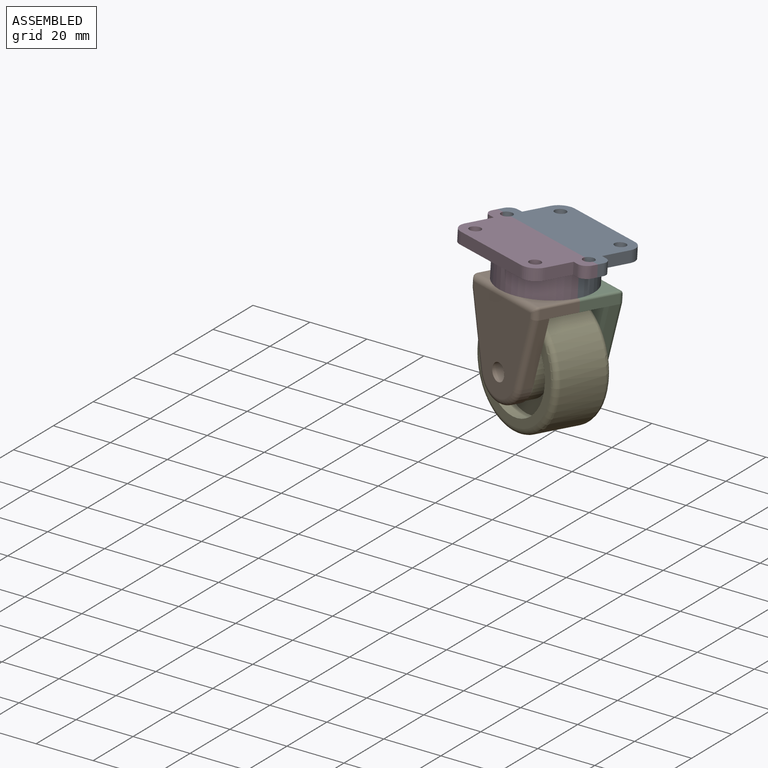
[diagram: assembled view]
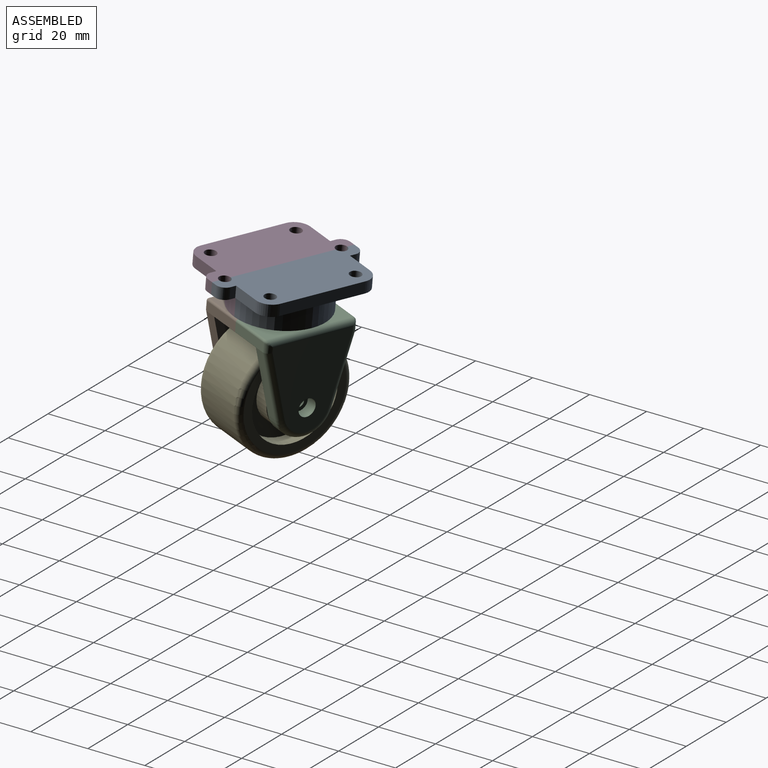
[diagram: assembled view, second angle]
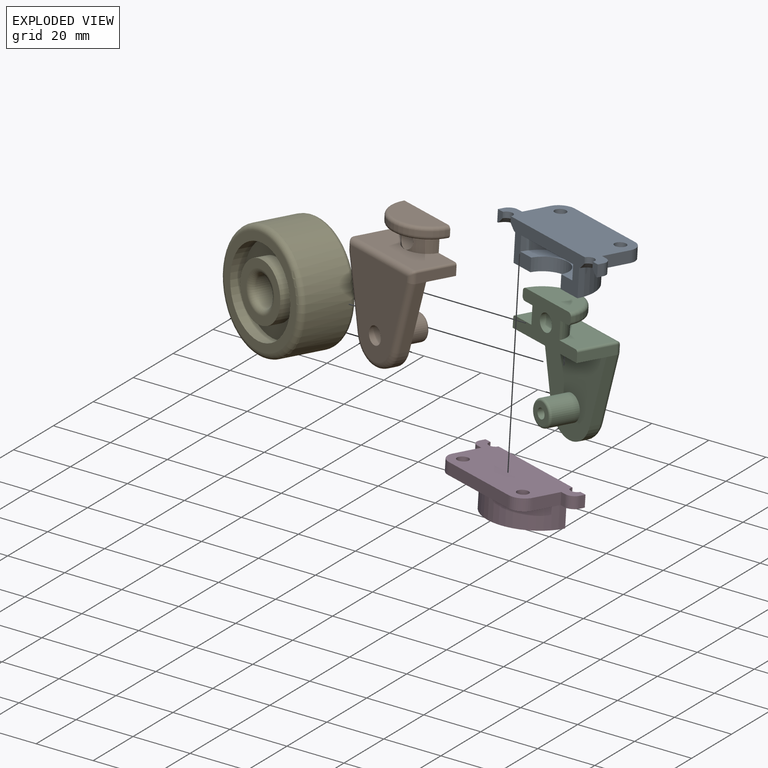
[diagram: exploded view]
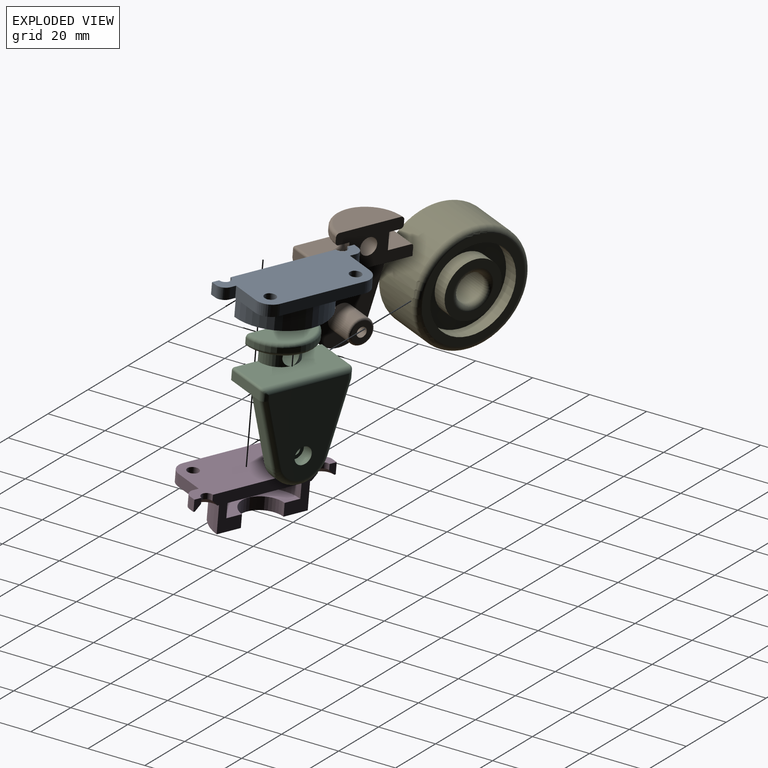
[diagram: exploded view, second angle]
ASSEMBLY  parts=5 mates=2
PART A: 30 faces, bbox 50x13.5x20 mm
  f0: plane 4x2.5mm, normal (0,0,1), area 8mm2, adj f2,f8,f19,f23,f27
  f1: plane 37x13.5mm, normal (0,0,1), area 250.5mm2, adj f2,f3,f8,f9,f10,f11,f12,f13
  f2: plane 50x20mm, normal (0,1,0), area 282.5mm2, adj f0,f1,f4,f5,f6,f7,f9,f16
  f3: plane 26x13mm, normal (0,1,0), area 265.5mm2, adj f1,f10
  f4: plane 4x2.5mm, normal (0,0,1), area 8mm2, adj f2,f8,f21,f22,f26
  f5: plane 10x4mm, normal (-1,0,0), area 40mm2, adj f2,f8,f16,f18
  f6: plane 30x4mm, normal (0,0,-1), area 120mm2, adj f2,f8,f16,f17
  f7: plane 10x4mm, normal (1,0,0), area 40mm2, adj f2,f8,f17,f20
  f8: plane 50x20mm, normal (0,-1,0), area 797.7mm2, adj f0,f1,f4,f5,f6,f7,f14,f15
  f9: cylinder r=16mm len=32mm, axis (0,-1,0), area 477.5mm2, adj f1,f2,f13
  f10: cylinder r=13mm len=26mm, axis (0,-1,0), area 204.2mm2, adj f1,f3,f11
  f11: plane 26x13mm, normal (0,-1,0), area 177.1mm2, adj f1,f10,f12
  f12: cylinder r=7.5mm len=15mm, axis (0,-1,0), area 106mm2, adj f1,f11,f13
  f13: plane 32x16mm, normal (0,1,0), area 313.8mm2, adj f1,f9,f12
  f14: cylinder r=2mm len=4mm, axis (0,1,0), area 25.1mm2, adj f8,f25
  f15: cylinder r=2mm len=4mm, axis (0,1,0), area 25.1mm2, adj f8,f24
  f16: cylinder r=5mm len=5mm, axis (0,1,0), area 31.4mm2, adj f2,f5,f6,f8
  f17: cylinder r=5mm len=5mm, axis (0,-1,0), area 31.4mm2, adj f2,f6,f7,f8
  f18: plane 4x2mm, normal (0,0,-1), area 8mm2, adj f2,f5,f8,f29
  f19: plane 4x2mm, normal (-1,0,0), area 8mm2, adj f0,f2,f8,f29
  f20: plane 4x2mm, normal (0,0,-1), area 8mm2, adj f2,f7,f8,f28
  f21: plane 4x2mm, normal (1,0,0), area 8mm2, adj f2,f4,f8,f28
  f22: cylinder r=2mm len=4mm, axis (0,1,0), area 12.6mm2, adj f1,f4,f8,f26
  f23: cylinder r=2mm len=4mm, axis (0,1,0), area 12.6mm2, adj f0,f1,f8,f27
  f24: cone r=2mm half-angle=45deg, axis (0,1,0), area 53.3mm2, adj f2,f15
  f25: cone r=2mm half-angle=45deg, axis (0,1,0), area 53.3mm2, adj f2,f14
  f26: cone r=2mm half-angle=45deg, axis (0,1,0), area 26.7mm2, adj f1,f2,f4,f22
  f27: cone r=2mm half-angle=45deg, axis (0,1,0), area 26.7mm2, adj f0,f1,f2,f23
  f28: cylinder r=3mm len=4mm, axis (0,-1,0), area 18.8mm2, adj f2,f8,f20,f21
  f29: cylinder r=3mm len=4mm, axis (0,1,0), area 18.8mm2, adj f2,f8,f18,f19
PART B: 34 faces, bbox 32x45.8x16 mm
  f0: cylinder r=1.75mm len=12mm, axis (0,0,-1), area 131.9mm2, adj f13,f31
  f1: cylinder r=7mm len=7mm, axis (0,-1,0), area 51.5mm2, adj f6,f11,f17,f29
  f2: plane 23.6x6.34mm, normal (-0.97,-0.26,0), area 85.5mm2, adj f3,f7,f9,f23
  f3: cylinder r=10mm len=19.31mm, axis (0,0,-1), area 91.6mm2, adj f2,f4,f9,f22
  f4: plane 23.6x6.34mm, normal (0.97,-0.26,0), area 85.5mm2, adj f3,f5,f9,f20
  f5: plane 14x3.2mm, normal (1,0,0), area 44.8mm2, adj f4,f10,f11,f18,f24
  f6: plane 30.4x14mm, normal (0,1,0), area 348.6mm2, adj f1,f11,f14,f19,f24,f26
  f7: plane 14x3.2mm, normal (-1,0,0), area 44.8mm2, adj f2,f10,f11,f21,f26
  f8: plane 31x28mm, normal (0,0,1), area 595.1mm2, adj f18,f19,f20,f21,f22,f23,f30
  f9: plane 32x31mm, normal (0,0,-1), area 647.5mm2, adj f2,f3,f4,f10,f12
  f10: plane 32x10.5mm, normal (0,-1,0), area 336mm2, adj f5,f7,f9,f11
  f11: plane 32x14mm, normal (0,0,-1), area 278.2mm2, adj f1,f5,f6,f7,f10,f14,f15,f16
  f12: cylinder r=4.5mm len=9.7mm, axis (0,0,1), area 274.3mm2, adj f9,f28
  f13: plane 7.4x7.4mm, normal (0,0,-1), area 33.4mm2, adj f0,f28
  f14: cylinder r=7mm len=7mm, axis (0,-1,0), area 51.5mm2, adj f6,f11,f17,f29
  f15: cylinder r=12mm len=24mm, axis (0,-1,0), area 60.3mm2, adj f11,f32,f33
  f16: plane 21.6x10.8mm, normal (0,1,0), area 183.2mm2, adj f11,f33
  f17: plane 21.6x10.8mm, normal (0,-1,0), area 106.2mm2, adj f1,f11,f14,f32
  f18: cylinder r=2mm len=3.2mm, axis (0,-1,0), area 8.4mm2, adj f5,f8,f20,f25
  f19: cylinder r=2mm len=30.4mm, axis (1,0,0), area 92.8mm2, adj f6,f8,f25,f27
  f20: cylinder r=2mm len=24.12mm, axis (-0.26,-0.97,0), area 76.5mm2, adj f4,f8,f18,f22
  f21: cylinder r=2mm len=3.2mm, axis (0,1,0), area 8.4mm2, adj f7,f8,f23,f27
  f22: torus R=8mm, axis (0,0,1), area 76.2mm2, adj f3,f8,f20,f23
  f23: cylinder r=2mm len=24.12mm, axis (-0.26,0.97,0), area 76.5mm2, adj f2,f8,f21,f22
  f24: cylinder r=0.8mm len=14mm, axis (0,0,1), area 17.6mm2, adj f5,f6,f11,f25
  f25: bspline ~2.36x2mm, area 2.7mm2, adj f18,f19,f24
  f26: cylinder r=0.8mm len=14mm, axis (0,0,-1), area 17.6mm2, adj f6,f7,f11,f27
  f27: bspline ~2.36x2mm, area 2.7mm2, adj f19,f21,f26
  f28: torus R=3.7mm, axis (0,0,1), area 33.2mm2, adj f12,f13
  f29: cylinder r=3mm len=7mm, axis (0,0,-1), area 125.7mm2, adj f1,f11,f14
  f30: cylinder r=3mm len=6mm, axis (0,0,1), area 75.4mm2, adj f8,f31
  f31: plane 6x6mm, normal (0,0,1), area 18.7mm2, adj f0,f30
  f32: torus R=10.8mm, axis (0,1,0), area 68.5mm2, adj f11,f15,f17
  f33: torus R=10.8mm, axis (0,1,0), area 68.5mm2, adj f11,f15,f16
PART C: same geometry as B
PART D: same geometry as A
PART E: 16 faces, bbox 43.3x43.3x20 mm
  f0: plane 30x30mm, normal (0,0,1), area 392.7mm2, adj f4,f6
  f1: cylinder r=5mm len=16mm, axis (0,0,-1), area 502.7mm2, adj f12,f13
  f2: cylinder r=20mm len=40mm, axis (0,0,-1), area 2010.6mm2, adj f14,f15
  f3: plane 30x30mm, normal (0,0,-1), area 392.7mm2, adj f8,f10
  f4: cylinder r=10mm len=20mm, axis (0,0,-1), area 314.2mm2, adj f0,f5
  f5: plane 20x20mm, normal (0,0,1), area 160.2mm2, adj f4,f13
  f6: cylinder r=15mm len=30mm, axis (0,0,-1), area 471.2mm2, adj f0,f7
  f7: plane 36x36mm, normal (0,0,1), area 311mm2, adj f6,f15
  f8: cylinder r=10mm len=20mm, axis (0,0,1), area 314.2mm2, adj f3,f9
  f9: plane 20x20mm, normal (0,0,-1), area 160.2mm2, adj f8,f12
  f10: cylinder r=15mm len=30mm, axis (0,0,1), area 471.2mm2, adj f3,f11
  f11: plane 36x36mm, normal (0,0,-1), area 311mm2, adj f10,f14
  f12: torus R=7mm, axis (0,0,-1), area 113mm2, adj f1,f9
  f13: torus R=7mm, axis (0,0,1), area 113mm2, adj f1,f5
  f14: torus R=18mm, axis (0,0,-1), area 380.4mm2, adj f2,f11
  f15: torus R=18mm, axis (0,0,1), area 380.4mm2, adj f2,f7
PLACE A rot(axis=(-0.13,-0.67,0.73),166.5deg) t=(-4.86,-31.21,-54.37)mm
PLACE B rot(axis=(0.97,-0.19,-0.17),86.9deg) t=(9.18,-51.02,-105.49)mm fixed
PLACE C rot(axis=(0.12,0.73,0.67),165.3deg) t=(-18.25,-18.82,-108.31)mm fixed
PLACE D rot(axis=(-0.97,0.16,-0.17),96.6deg) t=(-4.86,-31.21,-54.37)mm
PLACE E rot(axis=(-0.96,0.26,-0.08),95.1deg) t=(33.31,-50.93,-68.4)mm
MATE revolute C.f16 <-> A.f3  axis (0,0.09,1) through (-2.97,-26.04,-54.83)mm
MATE revolute A.f12 <-> D.f12  axis (0,0.09,1) through (-4.86,-30.86,-50.39)mm
